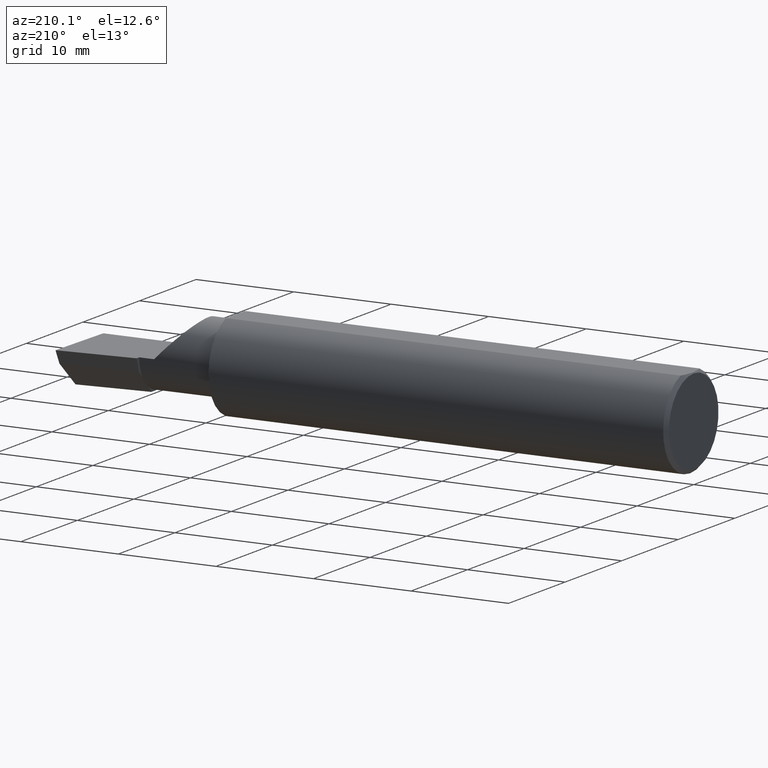
[diagram: clean part render]
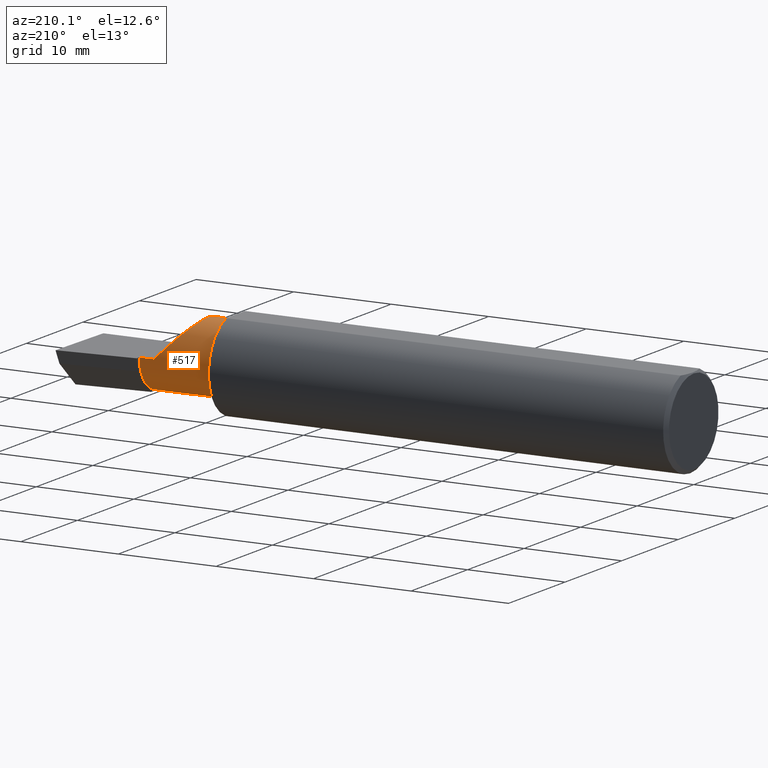
[diagram: same view with one face highlighted and labeled with its STEP entity id]
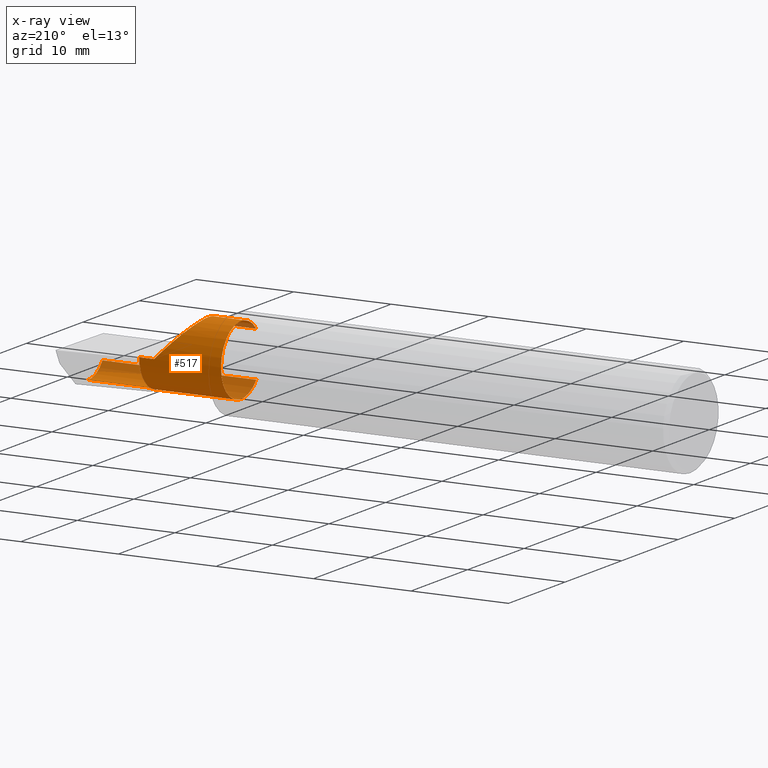
[diagram: x-ray of the same camera — body ghosted, the highlighted face saturated]
A machine part, auxiliary view. The second image highlights one B-rep face of the part: STEP entity #517.
The next image is the same camera in x-ray: the body ghosted, the highlighted face saturated — about 16% of this face is hidden behind the body in this view.
In plain terms, the highlighted cylindrical surface (partial cylindrical patch) has radius 3.5573 mm, axis along (-1, -0, -0).
Its self-contained STEP definition (entity closure, byte-faithful):
#6 = AXIS2_PLACEMENT_3D ( 'NONE', #69, #138, #185 ) ;
#7 = CYLINDRICAL_SURFACE ( 'NONE', #182, 0.1400500000000000078 ) ;
#9 = CARTESIAN_POINT ( 'NONE',  ( 2.189999999999999947, 0.02208021110064905049, -0.1153121786430048451 ) ) ;
#24 = CARTESIAN_POINT ( 'NONE',  ( 2.129999999999999893, 0.08264999999999990410, 1.065442715258197396E-16 ) ) ;
#36 = EDGE_CURVE ( 'NONE', #588, #563, #304, .T. ) ;
#38 = CARTESIAN_POINT ( 'NONE',  ( 2.129999999999999893, 0.08264999999999990410, 1.065442715258197396E-16 ) ) ;
#62 = VERTEX_POINT ( 'NONE', #284 ) ;
#63 = CARTESIAN_POINT ( 'NONE',  ( 2.189999999999999947, -0.05739999999999999963, -0.1400500000000000633 ) ) ;
#64 = DIRECTION ( 'NONE',  ( -1.000000000000000000, -6.829619984160658046E-18, -0.0000000000000000000 ) ) ;
#67 = CARTESIAN_POINT ( 'NONE',  ( 0.0000000000000000000, -0.05740000000000001351, 0.0000000000000000000 ) ) ;
#69 = CARTESIAN_POINT ( 'NONE',  ( 1.860000000000000098, -0.05740000000000000657, 0.0000000000000000000 ) ) ;
#86 = CARTESIAN_POINT ( 'NONE',  ( 2.024999999999999911, -0.1635956445993030084, -0.09130436773856176469 ) ) ;
#87 = EDGE_CURVE ( 'NONE', #563, #519, #343, .T. ) ;
#93 = ORIENTED_EDGE ( 'NONE', *, *, #527, .F. ) ;
#101 = VECTOR ( 'NONE', #567, 39.37007874015748143 ) ;
#111 = CARTESIAN_POINT ( 'NONE',  ( 2.477873865042410806, -0.05739999999999999963, -0.1400500000000000633 ) ) ;
#117 = EDGE_CURVE ( 'NONE', #172, #354, #128, .T. ) ;
#119 = CARTESIAN_POINT ( 'NONE',  ( 2.189999999999999947, 0.06026672169836851112, -0.07595093880103585826 ) ) ;
#120 = CARTESIAN_POINT ( 'NONE',  ( 1.860000000000000098, -0.1635956445993029529, 0.09130436773856188959 ) ) ;
#124 = CIRCLE ( 'NONE', #178, 0.1400500000000000356 ) ;
#128 =( BOUNDED_CURVE ( )  B_SPLINE_CURVE ( 3, ( #501, #280, #219, #268 ),
 .UNSPECIFIED., .F., .F. ) 
 B_SPLINE_CURVE_WITH_KNOTS ( ( 4, 4 ),
 ( 5.632580117768155148, 6.493234751459282528 ),
 .UNSPECIFIED. ) 
 CURVE ( )  GEOMETRIC_REPRESENTATION_ITEM ( )  RATIONAL_B_SPLINE_CURVE ( ( 1.000000000000000000, 0.9392195014330944058, 0.9392195014330944058, 1.000000000000000000 ) ) 
 REPRESENTATION_ITEM ( '' )  );
#138 = DIRECTION ( 'NONE',  ( -1.000000000000000000, -6.829619984160658046E-18, -0.0000000000000000000 ) ) ;
#139 = AXIS2_PLACEMENT_3D ( 'NONE', #227, #325, #382 ) ;
#140 = VECTOR ( 'NONE', #312, 39.37007874015748143 ) ;
#153 = LINE ( 'NONE', #170, #140 ) ;
#161 = EDGE_CURVE ( 'NONE', #62, #309, #464, .T. ) ;
#162 = CARTESIAN_POINT ( 'NONE',  ( 1.921229036482944075, -0.06260079402492431389, 0.2087709635170538203 ) ) ;
#170 = CARTESIAN_POINT ( 'NONE',  ( 2.500000000000000000, -0.05739999999999999963, -0.1400500000000000633 ) ) ;
#171 = VECTOR ( 'NONE', #533, 39.37007874015748143 ) ;
#172 = VERTEX_POINT ( 'NONE', #380 ) ;
#177 = ORIENTED_EDGE ( 'NONE', *, *, #390, .T. ) ;
#178 = AXIS2_PLACEMENT_3D ( 'NONE', #317, #275, #313 ) ;
#182 = AXIS2_PLACEMENT_3D ( 'NONE', #67, #64, #314 ) ;
#185 = DIRECTION ( 'NONE',  ( 0.0000000000000000000, -1.000000000000000000, 0.0000000000000000000 ) ) ;
#186 = VECTOR ( 'NONE', #292, 39.37007874015748143 ) ;
#198 = ORIENTED_EDGE ( 'NONE', *, *, #331, .T. ) ;
#201 = EDGE_CURVE ( 'NONE', #263, #371, #124, .T. ) ;
#207 = ORIENTED_EDGE ( 'NONE', *, *, #87, .T. ) ;
#208 = ORIENTED_EDGE ( 'NONE', *, *, #117, .F. ) ;
#209 = CARTESIAN_POINT ( 'NONE',  ( 1.860000000000000098, -0.1635956445993029251, -0.09130436773856194510 ) ) ;
#219 = CARTESIAN_POINT ( 'NONE',  ( 2.476787929832031221, -0.09887019258091186980, -0.1400500000000000356 ) ) ;
#224 = CARTESIAN_POINT ( 'NONE',  ( -9.564882787816664242E-19, 0.08264999999999998737, 3.267291166268304703E-16 ) ) ;
#227 = CARTESIAN_POINT ( 'NONE',  ( 2.189999999999999947, -0.05739999999999999963, 0.0000000000000000000 ) ) ;
#228 = VERTEX_POINT ( 'NONE', #209 ) ;
#256 = CARTESIAN_POINT ( 'NONE',  ( 2.024999999999999911, -0.1635956445993030084, 0.09130436773856176469 ) ) ;
#258 = CIRCLE ( 'NONE', #6, 0.1400499999999999801 ) ;
#263 = VERTEX_POINT ( 'NONE', #9 ) ;
#268 = CARTESIAN_POINT ( 'NONE',  ( 2.477873865042410806, -0.05739999999999999963, -0.1400500000000000633 ) ) ;
#270 = CARTESIAN_POINT ( 'NONE',  ( 2.038695632261437130, -0.1635956445993029529, 0.09130436773856191734 ) ) ;
#275 = DIRECTION ( 'NONE',  ( -1.000000000000000000, -6.829619984160658046E-18, -0.0000000000000000000 ) ) ;
#279 = ORIENTED_EDGE ( 'NONE', *, *, #418, .F. ) ;
#280 = CARTESIAN_POINT ( 'NONE',  ( 2.477925907309857401, -0.1365595166907235813, -0.1227499502647108609 ) ) ;
#284 = CARTESIAN_POINT ( 'NONE',  ( 2.189999999999999947, 0.08265000000000004288, 3.267291166268305196E-16 ) ) ;
#292 = DIRECTION ( 'NONE',  ( -1.000000000000000000, -6.829619984160658046E-18, -0.0000000000000000000 ) ) ;
#304 = LINE ( 'NONE', #256, #101 ) ;
#309 = VERTEX_POINT ( 'NONE', #119 ) ;
#312 = DIRECTION ( 'NONE',  ( -1.000000000000000000, 5.691349986800549142E-18, -0.0000000000000000000 ) ) ;
#313 = DIRECTION ( 'NONE',  ( 0.0000000000000000000, -1.000000000000000000, 0.0000000000000000000 ) ) ;
#314 = DIRECTION ( 'NONE',  ( 6.829619984160658816E-18, -1.000000000000000000, 0.0000000000000000000 ) ) ;
#317 = CARTESIAN_POINT ( 'NONE',  ( 2.189999999999999947, -0.05739999999999999963, 0.0000000000000000000 ) ) ;
#324 = CARTESIAN_POINT ( 'NONE',  ( 2.038695632261437130, -0.1635956445993029529, 0.09130436773856191734 ) ) ;
#325 = DIRECTION ( 'NONE',  ( -1.000000000000000000, -6.829619984160658046E-18, -0.0000000000000000000 ) ) ;
#330 = ORIENTED_EDGE ( 'NONE', *, *, #161, .T. ) ;
#331 = EDGE_CURVE ( 'NONE', #519, #62, #376, .T. ) ;
#333 = LINE ( 'NONE', #86, #186 ) ;
#343 =( BOUNDED_CURVE ( )  B_SPLINE_CURVE ( 3, ( #270, #162, #591, #38 ),
 .UNSPECIFIED., .F., .F. ) 
 B_SPLINE_CURVE_WITH_KNOTS ( ( 4, 4 ),
 ( 5.422530673488458852, 7.853981633974482790 ),
 .UNSPECIFIED. ) 
 CURVE ( )  GEOMETRIC_REPRESENTATION_ITEM ( )  RATIONAL_B_SPLINE_CURVE ( ( 1.000000000000000000, 0.5651045289226863666, 0.5651045289226863666, 1.000000000000000000 ) ) 
 REPRESENTATION_ITEM ( '' )  );
#354 = VERTEX_POINT ( 'NONE', #111 ) ;
#366 = FACE_OUTER_BOUND ( 'NONE', #570, .T. ) ;
#371 = VERTEX_POINT ( 'NONE', #63 ) ;
#376 = LINE ( 'NONE', #224, #171 ) ;
#380 = CARTESIAN_POINT ( 'NONE',  ( 2.481080296960508580, -0.1635956445993030084, -0.09130436773856176469 ) ) ;
#381 = ORIENTED_EDGE ( 'NONE', *, *, #201, .T. ) ;
#382 = DIRECTION ( 'NONE',  ( 0.0000000000000000000, -1.000000000000000000, 0.0000000000000000000 ) ) ;
#390 = EDGE_CURVE ( 'NONE', #172, #228, #333, .T. ) ;
#400 = EDGE_CURVE ( 'NONE', #354, #371, #153, .T. ) ;
#412 = ORIENTED_EDGE ( 'NONE', *, *, #36, .T. ) ;
#418 = EDGE_CURVE ( 'NONE', #263, #309, #480, .T. ) ;
#462 = DIRECTION ( 'NONE',  ( 1.000000000000000000, 6.829619984160658046E-18, 0.0000000000000000000 ) ) ;
#464 = CIRCLE ( 'NONE', #139, 0.1400500000000000356 ) ;
#470 = ORIENTED_EDGE ( 'NONE', *, *, #400, .F. ) ;
#478 = DIRECTION ( 'NONE',  ( 0.0000000000000000000, -1.000000000000000000, 0.0000000000000000000 ) ) ;
#480 = CIRCLE ( 'NONE', #523, 0.1400500000000000356 ) ;
#486 = CARTESIAN_POINT ( 'NONE',  ( 2.189999999999999947, -0.05739999999999999963, 0.0000000000000000000 ) ) ;
#501 = CARTESIAN_POINT ( 'NONE',  ( 2.481080296960508580, -0.1635956445993030084, -0.09130436773856176469 ) ) ;
#517 = ADVANCED_FACE ( 'NONE', ( #366 ), #7, .T. ) ;
#519 = VERTEX_POINT ( 'NONE', #24 ) ;
#523 = AXIS2_PLACEMENT_3D ( 'NONE', #486, #462, #478 ) ;
#527 = EDGE_CURVE ( 'NONE', #588, #228, #258, .T. ) ;
#533 = DIRECTION ( 'NONE',  ( 1.000000000000000000, 6.829619984160658046E-18, 0.0000000000000000000 ) ) ;
#563 = VERTEX_POINT ( 'NONE', #324 ) ;
#567 = DIRECTION ( 'NONE',  ( 1.000000000000000000, 6.829619984160658046E-18, 0.0000000000000000000 ) ) ;
#570 = EDGE_LOOP ( 'NONE', ( #208, #177, #93, #412, #207, #198, #330, #279, #381, #470 ) ) ;
#588 = VERTEX_POINT ( 'NONE', #120 ) ;
#591 = CARTESIAN_POINT ( 'NONE',  ( 1.975085956200449022, 0.08265000000000000124, 0.1549140437995494002 ) ) ;